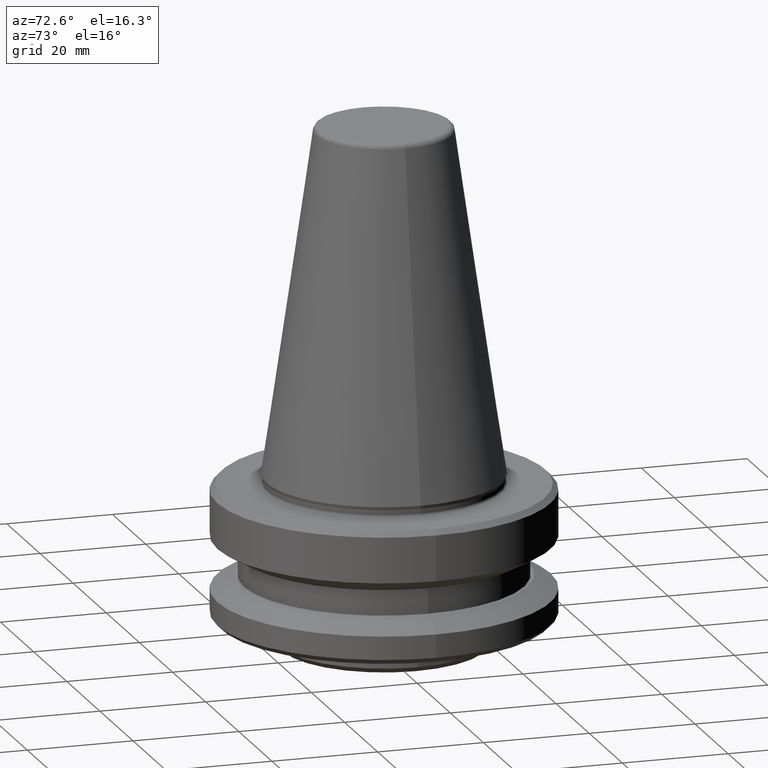
[diagram: clean part render]
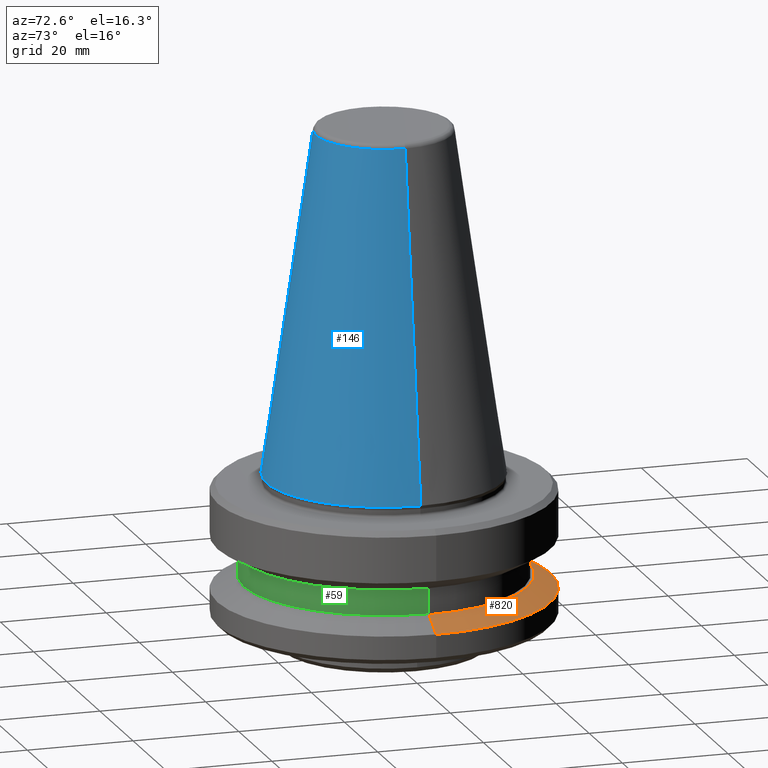
[diagram: same view with three faces highlighted in distinct colors, each labeled with its STEP entity id]
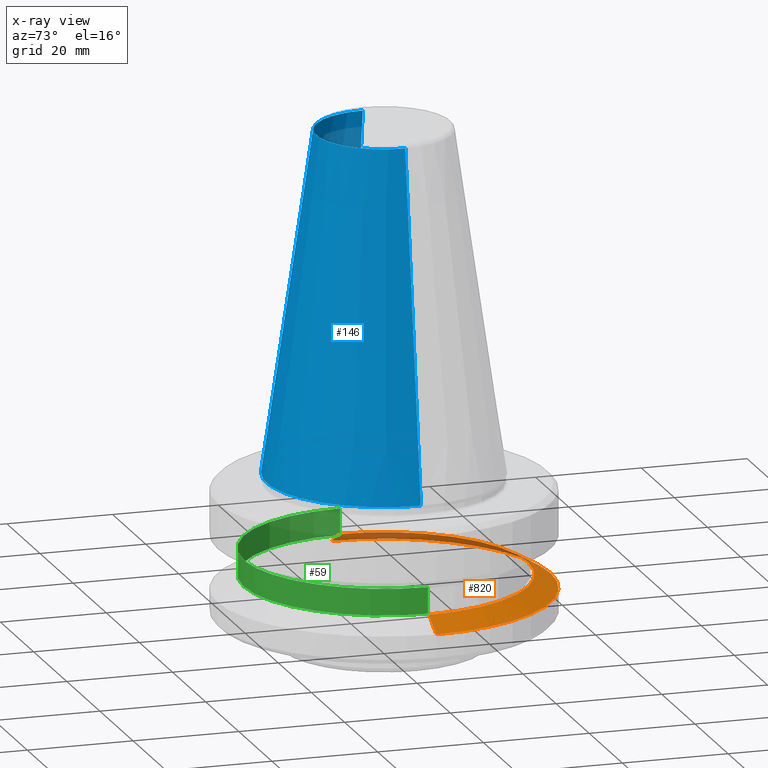
[diagram: x-ray of the same camera — body ghosted, the three highlighted faces saturated]
A machine part, auxiliary view with three faces highlighted in distinct colors.
The next image is the same camera in x-ray (body ghosted, the three faces saturated) — at least one of them is partly hidden behind the body in this view.
Their STEP definitions:

[orange] entity #820 — the highlighted conical surface has half-angle 60 deg.
#33 = LINE ( 'NONE', #559, #825 ) ;
#57 = CARTESIAN_POINT ( 'NONE',  ( -27.16962617403466900, 0.0000000000000000000, -19.10000077622331500 ) ) ;
#77 = CARTESIAN_POINT ( 'NONE',  ( 31.49999915511100200, 0.0000000000000000000, -21.60014278253921600 ) ) ;
#95 = ORIENTED_EDGE ( 'NONE', *, *, #200, .T. ) ;
#154 = VECTOR ( 'NONE', #419, 1000.000000000000000 ) ;
#175 = LINE ( 'NONE', #361, #154 ) ;
#200 = EDGE_CURVE ( 'NONE', #515, #482, #33, .T. ) ;
#212 = CARTESIAN_POINT ( 'NONE',  ( 27.16962617403466900, 3.592478443325636300E-015, -19.10000077622331500 ) ) ;
#273 = CARTESIAN_POINT ( 'NONE',  ( 0.0000000000000000000, 0.0000000000000000000, -19.10000077622331500 ) ) ;
#280 = ORIENTED_EDGE ( 'NONE', *, *, #971, .T. ) ;
#309 = DIRECTION ( 'NONE',  ( -0.0000000000000000000, -0.0000000000000000000, 1.000000000000000000 ) ) ;
#314 = DIRECTION ( 'NONE',  ( 0.8660254037844387100, 1.060575238724906900E-016, -0.4999999999999998900 ) ) ;
#319 = VERTEX_POINT ( 'NONE', #57 ) ;
#358 = AXIS2_PLACEMENT_3D ( 'NONE', #549, #767, #690 ) ;
#361 = CARTESIAN_POINT ( 'NONE',  ( -31.49999915511100200, 0.0000000000000000000, -21.60014278253921600 ) ) ;
#419 = DIRECTION ( 'NONE',  ( -0.8660254037844387100, 0.0000000000000000000, -0.4999999999999998900 ) ) ;
#434 = CARTESIAN_POINT ( 'NONE',  ( 0.0000000000000000000, 0.0000000000000000000, -21.60014278253921600 ) ) ;
#482 = VERTEX_POINT ( 'NONE', #77 ) ;
#513 = CIRCLE ( 'NONE', #538, 27.16962617403466900 ) ;
#515 = VERTEX_POINT ( 'NONE', #212 ) ;
#538 = AXIS2_PLACEMENT_3D ( 'NONE', #273, #309, #850 ) ;
#549 = CARTESIAN_POINT ( 'NONE',  ( 0.0000000000000000000, 0.0000000000000000000, -21.60014278253921600 ) ) ;
#556 = EDGE_CURVE ( 'NONE', #319, #973, #175, .T. ) ;
#559 = CARTESIAN_POINT ( 'NONE',  ( 31.49999915511100200, 3.857637313845101900E-015, -21.60014278253921600 ) ) ;
#575 = FACE_OUTER_BOUND ( 'NONE', #582, .T. ) ;
#582 = EDGE_LOOP ( 'NONE', ( #908, #95, #280, #833 ) ) ;
#596 = EDGE_CURVE ( 'NONE', #515, #319, #513, .T. ) ;
#690 = DIRECTION ( 'NONE',  ( -1.000000000000000000, 0.0000000000000000000, 0.0000000000000000000 ) ) ;
#715 = DIRECTION ( 'NONE',  ( -0.0000000000000000000, -0.0000000000000000000, 1.000000000000000000 ) ) ;
#746 = CONICAL_SURFACE ( 'NONE', #358, 31.49999915511100200, 1.047197551196597900 ) ;
#767 = DIRECTION ( 'NONE',  ( 0.0000000000000000000, 0.0000000000000000000, -1.000000000000000000 ) ) ;
#820 = ADVANCED_FACE ( 'NONE', ( #575 ), #746, .T. ) ;
#825 = VECTOR ( 'NONE', #314, 1000.000000000000000 ) ;
#833 = ORIENTED_EDGE ( 'NONE', *, *, #556, .F. ) ;
#850 = DIRECTION ( 'NONE',  ( 1.000000000000000000, 0.0000000000000000000, 0.0000000000000000000 ) ) ;
#908 = ORIENTED_EDGE ( 'NONE', *, *, #596, .F. ) ;
#929 = CIRCLE ( 'NONE', #980, 31.49999915511100200 ) ;
#950 = CARTESIAN_POINT ( 'NONE',  ( -31.49999915511100200, 3.857637313845101900E-015, -21.60014278253921600 ) ) ;
#963 = DIRECTION ( 'NONE',  ( 1.000000000000000000, 0.0000000000000000000, 0.0000000000000000000 ) ) ;
#971 = EDGE_CURVE ( 'NONE', #482, #973, #929, .T. ) ;
#973 = VERTEX_POINT ( 'NONE', #950 ) ;
#980 = AXIS2_PLACEMENT_3D ( 'NONE', #434, #715, #963 ) ;

[blue] entity #146 — the highlighted conical surface has half-angle 8.297 deg.
#13 = VERTEX_POINT ( 'NONE', #213 ) ;
#22 = AXIS2_PLACEMENT_3D ( 'NONE', #815, #612, #372 ) ;
#53 = CARTESIAN_POINT ( 'NONE',  ( 0.0000000000000000000, 0.0000000000000000000, 4.440892098500626200E-013 ) ) ;
#55 = CONICAL_SURFACE ( 'NONE', #718, 22.22500000000016100, 0.1448138077623193600 ) ;
#127 = LINE ( 'NONE', #471, #487 ) ;
#140 = EDGE_LOOP ( 'NONE', ( #484, #803, #650, #768 ) ) ;
#146 = ADVANCED_FACE ( 'NONE', ( #490 ), #55, .T. ) ;
#166 = LINE ( 'NONE', #866, #365 ) ;
#176 = EDGE_CURVE ( 'NONE', #586, #675, #848, .T. ) ;
#213 = CARTESIAN_POINT ( 'NONE',  ( -12.81220206925781600, 0.0000000000000000000, 64.54430818888745600 ) ) ;
#283 = EDGE_CURVE ( 'NONE', #13, #527, #961, .T. ) ;
#354 = DIRECTION ( 'NONE',  ( 0.0000000000000000000, 0.0000000000000000000, -1.000000000000000000 ) ) ;
#365 = VECTOR ( 'NONE', #836, 999.9999999999998900 ) ;
#372 = DIRECTION ( 'NONE',  ( 1.000000000000000000, 0.0000000000000000000, 0.0000000000000000000 ) ) ;
#397 = CARTESIAN_POINT ( 'NONE',  ( -22.22500000000016100, 2.721777511105012200E-015, 4.440892098500626200E-013 ) ) ;
#429 = CARTESIAN_POINT ( 'NONE',  ( 0.0000000000000000000, 0.0000000000000000000, 64.54430818888745600 ) ) ;
#471 = CARTESIAN_POINT ( 'NONE',  ( 22.22500000000016100, 2.721777511105012600E-015, 4.440892098500626200E-013 ) ) ;
#484 = ORIENTED_EDGE ( 'NONE', *, *, #641, .F. ) ;
#487 = VECTOR ( 'NONE', #987, 999.9999999999998900 ) ;
#490 = FACE_OUTER_BOUND ( 'NONE', #140, .T. ) ;
#527 = VERTEX_POINT ( 'NONE', #552 ) ;
#552 = CARTESIAN_POINT ( 'NONE',  ( 12.81220206925781600, 2.145409868259790500E-015, 64.54430818888745600 ) ) ;
#586 = VERTEX_POINT ( 'NONE', #397 ) ;
#612 = DIRECTION ( 'NONE',  ( -0.0000000000000000000, -0.0000000000000000000, 1.000000000000000000 ) ) ;
#641 = EDGE_CURVE ( 'NONE', #527, #675, #127, .T. ) ;
#650 = ORIENTED_EDGE ( 'NONE', *, *, #826, .T. ) ;
#668 = DIRECTION ( 'NONE',  ( 1.000000000000000000, 0.0000000000000000000, 0.0000000000000000000 ) ) ;
#675 = VERTEX_POINT ( 'NONE', #967 ) ;
#718 = AXIS2_PLACEMENT_3D ( 'NONE', #53, #354, #741 ) ;
#741 = DIRECTION ( 'NONE',  ( -1.000000000000000000, 0.0000000000000000000, 0.0000000000000000000 ) ) ;
#768 = ORIENTED_EDGE ( 'NONE', *, *, #176, .T. ) ;
#803 = ORIENTED_EDGE ( 'NONE', *, *, #283, .F. ) ;
#815 = CARTESIAN_POINT ( 'NONE',  ( 0.0000000000000000000, 0.0000000000000000000, 4.440892098500626200E-013 ) ) ;
#826 = EDGE_CURVE ( 'NONE', #13, #586, #166, .T. ) ;
#836 = DIRECTION ( 'NONE',  ( -0.1443081888881791500, 0.0000000000000000000, -0.9895327920891827700 ) ) ;
#848 = CIRCLE ( 'NONE', #22, 22.22500000000016100 ) ;
#866 = CARTESIAN_POINT ( 'NONE',  ( -22.22500000000016100, 0.0000000000000000000, 4.440892098500626200E-013 ) ) ;
#898 = DIRECTION ( 'NONE',  ( -0.0000000000000000000, -0.0000000000000000000, 1.000000000000000000 ) ) ;
#961 = CIRCLE ( 'NONE', #977, 12.81220206925781600 ) ;
#967 = CARTESIAN_POINT ( 'NONE',  ( 22.22500000000016100, 0.0000000000000000000, 4.440892098500626200E-013 ) ) ;
#977 = AXIS2_PLACEMENT_3D ( 'NONE', #429, #898, #668 ) ;
#987 = DIRECTION ( 'NONE',  ( 0.1443081888881791500, 1.767265616126602400E-017, -0.9895327920891827700 ) ) ;

[green] entity #59 — the highlighted cylindrical surface (partial cylindrical patch) has radius 26.5 mm, axis along (-0, -0, 1).
#39 = ORIENTED_EDGE ( 'NONE', *, *, #70, .T. ) ;
#51 = EDGE_LOOP ( 'NONE', ( #404, #921, #39, #500 ) ) ;
#59 = ADVANCED_FACE ( 'NONE', ( #334 ), #924, .T. ) ;
#70 = EDGE_CURVE ( 'NONE', #247, #428, #713, .T. ) ;
#133 = DIRECTION ( 'NONE',  ( -0.0000000000000000000, -0.0000000000000000000, 1.000000000000000000 ) ) ;
#142 = LINE ( 'NONE', #714, #639 ) ;
#173 = CARTESIAN_POINT ( 'NONE',  ( 26.49999999999996800, 0.0000000000000000000, 102.7767479270557900 ) ) ;
#207 = CIRCLE ( 'NONE', #305, 26.49999999999996800 ) ;
#240 = CARTESIAN_POINT ( 'NONE',  ( 0.0000000000000000000, 0.0000000000000000000, 102.7767479270557900 ) ) ;
#247 = VERTEX_POINT ( 'NONE', #829 ) ;
#305 = AXIS2_PLACEMENT_3D ( 'NONE', #535, #423, #783 ) ;
#308 = AXIS2_PLACEMENT_3D ( 'NONE', #240, #133, #819 ) ;
#334 = FACE_OUTER_BOUND ( 'NONE', #51, .T. ) ;
#404 = ORIENTED_EDGE ( 'NONE', *, *, #837, .F. ) ;
#423 = DIRECTION ( 'NONE',  ( -0.0000000000000000000, -0.0000000000000000000, 1.000000000000000000 ) ) ;
#428 = VERTEX_POINT ( 'NONE', #832 ) ;
#433 = AXIS2_PLACEMENT_3D ( 'NONE', #476, #642, #507 ) ;
#455 = CARTESIAN_POINT ( 'NONE',  ( -26.49999999999996800, 3.245314017740481800E-015, -14.10000000000089000 ) ) ;
#475 = DIRECTION ( 'NONE',  ( -0.0000000000000000000, -0.0000000000000000000, 1.000000000000000000 ) ) ;
#476 = CARTESIAN_POINT ( 'NONE',  ( 0.0000000000000000000, 0.0000000000000000000, -19.10000077622331500 ) ) ;
#500 = ORIENTED_EDGE ( 'NONE', *, *, #796, .F. ) ;
#507 = DIRECTION ( 'NONE',  ( 1.000000000000000000, 0.0000000000000000000, 0.0000000000000000000 ) ) ;
#516 = VECTOR ( 'NONE', #475, 1000.000000000000000 ) ;
#535 = CARTESIAN_POINT ( 'NONE',  ( 0.0000000000000000000, 0.0000000000000000000, -14.10000000000089000 ) ) ;
#539 = CIRCLE ( 'NONE', #433, 26.49999999999996800 ) ;
#557 = CARTESIAN_POINT ( 'NONE',  ( -26.49999999999996800, 3.245314017740481800E-015, -19.10000077622331500 ) ) ;
#590 = EDGE_CURVE ( 'NONE', #678, #247, #539, .T. ) ;
#627 = VERTEX_POINT ( 'NONE', #455 ) ;
#639 = VECTOR ( 'NONE', #772, 1000.000000000000000 ) ;
#642 = DIRECTION ( 'NONE',  ( -0.0000000000000000000, -0.0000000000000000000, 1.000000000000000000 ) ) ;
#678 = VERTEX_POINT ( 'NONE', #557 ) ;
#713 = LINE ( 'NONE', #173, #516 ) ;
#714 = CARTESIAN_POINT ( 'NONE',  ( -26.49999999999996800, 3.245314017740481800E-015, 102.7767479270557900 ) ) ;
#772 = DIRECTION ( 'NONE',  ( -0.0000000000000000000, -0.0000000000000000000, 1.000000000000000000 ) ) ;
#783 = DIRECTION ( 'NONE',  ( 1.000000000000000000, 0.0000000000000000000, 0.0000000000000000000 ) ) ;
#796 = EDGE_CURVE ( 'NONE', #627, #428, #207, .T. ) ;
#819 = DIRECTION ( 'NONE',  ( 1.000000000000000000, 0.0000000000000000000, 0.0000000000000000000 ) ) ;
#829 = CARTESIAN_POINT ( 'NONE',  ( 26.49999999999996800, 0.0000000000000000000, -19.10000077622331500 ) ) ;
#832 = CARTESIAN_POINT ( 'NONE',  ( 26.49999999999996800, 0.0000000000000000000, -14.10000000000089000 ) ) ;
#837 = EDGE_CURVE ( 'NONE', #678, #627, #142, .T. ) ;
#921 = ORIENTED_EDGE ( 'NONE', *, *, #590, .T. ) ;
#924 = CYLINDRICAL_SURFACE ( 'NONE', #308, 26.49999999999996800 ) ;